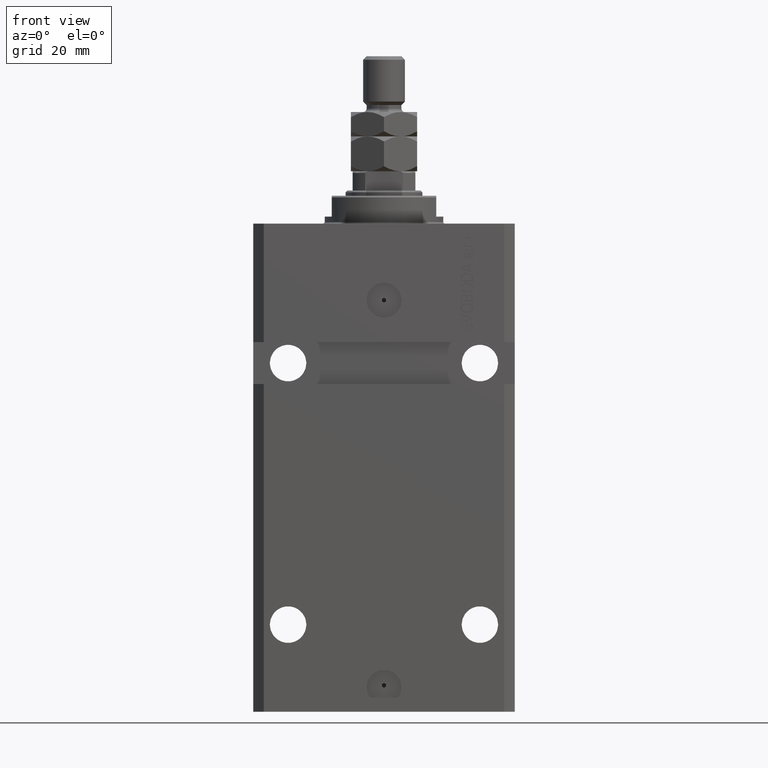
[diagram: clean part render]
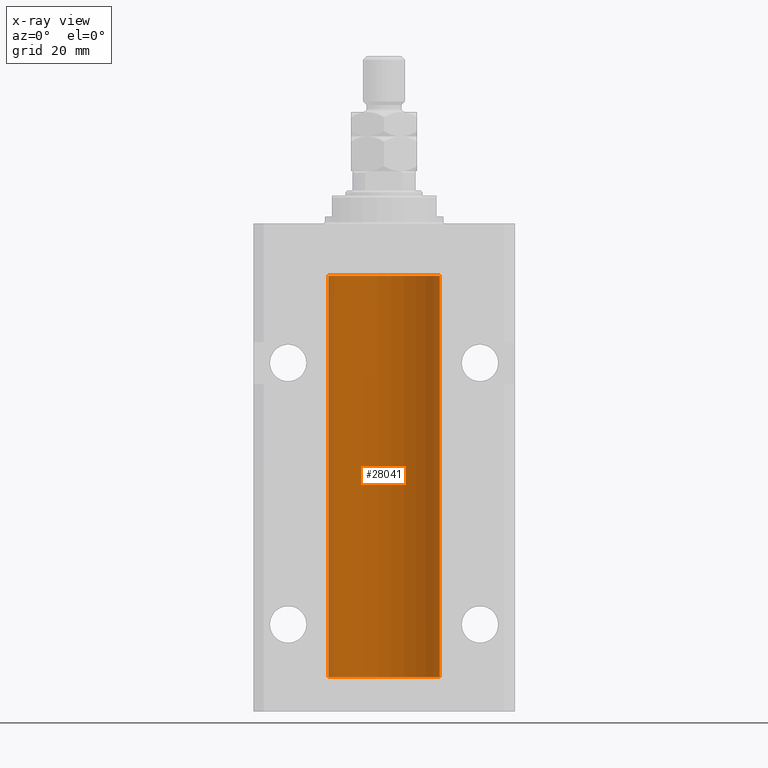
[diagram: x-ray — body ghosted, one internal face saturated and labeled with its STEP entity id]
A machine part, front view, then the same camera in x-ray: the body is ghosted and one INTERNAL B-rep face — a face not visible from any outside direction — is saturated and labeled: STEP entity #28041.
In plain terms, the highlighted cylindrical surface (partial cylindrical patch) has radius 16 mm, axis along (0, 0, 1).
Its self-contained STEP definition (entity closure, byte-faithful):
#241 = CARTESIAN_POINT ( 'NONE',  ( -16.00000000000000711, 0.08259886010189904093, -21.37500000000000000 ) ) ;
#928 = CARTESIAN_POINT ( 'NONE',  ( -15.99711699979842017, 0.3253759916140657737, -22.55856151623175521 ) ) ;
#1134 = AXIS2_PLACEMENT_3D ( 'NONE', #27383, #34880, #3125 ) ;
#1167 = CARTESIAN_POINT ( 'NONE',  ( -15.98779057735153941, 0.6249419637998100407, -21.83670145863507273 ) ) ;
#1276 = ORIENTED_EDGE ( 'NONE', *, *, #25081, .F. ) ;
#1731 = EDGE_CURVE ( 'NONE', #36406, #44662, #34573, .T. ) ;
#2275 = CARTESIAN_POINT ( 'NONE',  ( 16.00000000000000000, 0.000000000000000000, -130.0999999999999943 ) ) ;
#3125 = DIRECTION ( 'NONE',  ( 1.000000000000000000, 0.000000000000000000, 0.000000000000000000 ) ) ;
#3172 = CARTESIAN_POINT ( 'NONE',  ( 0.000000000000000000, 0.000000000000000000, -130.0999999999999943 ) ) ;
#3744 = CARTESIAN_POINT ( 'NONE',  ( -16.00000000000000000, 0.1631714642025800244, -22.62499999999985789 ) ) ;
#4399 = LINE ( 'NONE', #40129, #30821 ) ;
#5290 = EDGE_CURVE ( 'NONE', #44662, #29790, #14824, .T. ) ;
#6327 = ORIENTED_EDGE ( 'NONE', *, *, #35996, .F. ) ;
#6512 = CARTESIAN_POINT ( 'NONE',  ( -15.99070426498503217, 0.5462220647145575869, -128.3146006461414288 ) ) ;
#7284 = EDGE_CURVE ( 'NONE', #29833, #42352, #37778, .T. ) ;
#7487 = DIRECTION ( 'NONE',  ( -0.000000000000000000, -0.000000000000000000, 1.000000000000000000 ) ) ;
#7934 = CARTESIAN_POINT ( 'NONE',  ( -15.99707730059171240, 0.3150375992092407373, -21.45402333202571654 ) ) ;
#7941 = CYLINDRICAL_SURFACE ( 'NONE', #38777, 16.00000000000000000 ) ;
#8145 = EDGE_CURVE ( 'NONE', #33987, #16210, #45873, .T. ) ;
#8168 = CARTESIAN_POINT ( 'NONE',  ( 0.000000000000000000, 0.000000000000000000, -130.0999999999999943 ) ) ;
#9031 = EDGE_LOOP ( 'NONE', ( #10993, #18678, #40079, #17887, #1276, #43239, #6327, #23011 ) ) ;
#9766 = CARTESIAN_POINT ( 'NONE',  ( -16.00000000000000355, 0.08259886010188438599, -127.3749999999999574 ) ) ;
#9937 = DIRECTION ( 'NONE',  ( 0.000000000000000000, 0.000000000000000000, 1.000000000000000000 ) ) ;
#10230 = CARTESIAN_POINT ( 'NONE',  ( -15.98779057735154296, 0.6249419637998029353, -127.8367014586350763 ) ) ;
#10993 = ORIENTED_EDGE ( 'NONE', *, *, #5290, .F. ) ;
#11240 = CARTESIAN_POINT ( 'NONE',  ( -16.00000000000000000, 1.643679961284177128E-16, -21.37499999999999645 ) ) ;
#11415 = CARTESIAN_POINT ( 'NONE',  ( -16.00000000000013145, 3.685127038166941002E-13, -22.62500000000341771 ) ) ;
#11660 = DIRECTION ( 'NONE',  ( 1.000000000000000000, 0.000000000000000000, 0.000000000000000000 ) ) ;
#14512 = CARTESIAN_POINT ( 'NONE',  ( -16.00000000000013145, 3.685127464164956467E-13, -128.6250000000034390 ) ) ;
#14699 = CARTESIAN_POINT ( 'NONE',  ( -15.98778717651346071, 0.6250289588122140971, -22.08131585687052478 ) ) ;
#14824 = LINE ( 'NONE', #36323, #37546 ) ;
#14917 = CARTESIAN_POINT ( 'NONE',  ( -15.99934216141748244, 0.1636497843296417787, -21.39126528029306229 ) ) ;
#16210 = VERTEX_POINT ( 'NONE', #22124 ) ;
#16615 = CARTESIAN_POINT ( 'NONE',  ( 16.00000000000000000, 0.000000000000000000, -130.0999999999999943 ) ) ;
#17887 = ORIENTED_EDGE ( 'NONE', *, *, #8145, .T. ) ;
#18194 = CARTESIAN_POINT ( 'NONE',  ( -15.99070653155267685, 0.5573233280232986475, -21.67348148680506625 ) ) ;
#18678 = ORIENTED_EDGE ( 'NONE', *, *, #1731, .F. ) ;
#20483 = CARTESIAN_POINT ( 'NONE',  ( -15.99711699979841661, 0.3253759916140733233, -128.5585615162317765 ) ) ;
#21962 = DIRECTION ( 'NONE',  ( -0.000000000000000000, -0.000000000000000000, 1.000000000000000000 ) ) ;
#22124 = CARTESIAN_POINT ( 'NONE',  ( -16.00000000000000000, 1.959434878635765131E-15, -15.00000000000000000 ) ) ;
#22143 = CARTESIAN_POINT ( 'NONE',  ( -15.99548640841683067, 0.3843705577988847377, -21.50046628527008608 ) ) ;
#23011 = ORIENTED_EDGE ( 'NONE', *, *, #31346, .T. ) ;
#23988 = CARTESIAN_POINT ( 'NONE',  ( -15.99070653155267685, 0.5573233280232815501, -127.6734814868050449 ) ) ;
#24393 = DIRECTION ( 'NONE',  ( 1.000000000000000000, 0.000000000000000000, 0.000000000000000000 ) ) ;
#24448 = CARTESIAN_POINT ( 'NONE',  ( -15.99228023727723702, 0.5003781296993445871, -128.3834782955424032 ) ) ;
#24670 = CARTESIAN_POINT ( 'NONE',  ( -15.98778717651346604, 0.6250289588122058815, -128.0813158568705603 ) ) ;
#24971 = CARTESIAN_POINT ( 'NONE',  ( -15.99070426498503217, 0.5462220647145618058, -22.31460064614143590 ) ) ;
#25003 = CARTESIAN_POINT ( 'NONE',  ( -16.00000000000013145, 3.685127038166941002E-13, -22.62500000000341771 ) ) ;
#25081 = EDGE_CURVE ( 'NONE', #29833, #16210, #39511, .T. ) ;
#25387 = CARTESIAN_POINT ( 'NONE',  ( -16.00000000000000000, -1.314639473218082033E-14, -127.3749999999999858 ) ) ;
#25434 = FACE_OUTER_BOUND ( 'NONE', #9031, .T. ) ;
#26977 = LINE ( 'NONE', #2275, #35909 ) ;
#27383 = CARTESIAN_POINT ( 'NONE',  ( 0.000000000000000000, 0.000000000000000000, -15.00000000000000000 ) ) ;
#27578 = VECTOR ( 'NONE', #21962, 1000.000000000000000 ) ;
#28041 = ADVANCED_FACE ( 'NONE', ( #25434 ), #7941, .F. ) ;
#28179 = CARTESIAN_POINT ( 'NONE',  ( -16.00000000000013145, 3.685127464164956467E-13, -128.6250000000034390 ) ) ;
#28936 = CARTESIAN_POINT ( 'NONE',  ( -15.99228023727724413, 0.5003781296993413674, -22.38347829554236057 ) ) ;
#28982 = CARTESIAN_POINT ( 'NONE',  ( -16.00000000000000000, 1.959434878635765131E-15, -130.0999999999999943 ) ) ;
#29790 = VERTEX_POINT ( 'NONE', #14512 ) ;
#29833 = VERTEX_POINT ( 'NONE', #11240 ) ;
#30821 = VECTOR ( 'NONE', #36613, 1000.000000000000000 ) ;
#31247 = CARTESIAN_POINT ( 'NONE',  ( -16.00000000000000000, -1.314639473218082033E-14, -127.3749999999999858 ) ) ;
#31346 = EDGE_CURVE ( 'NONE', #38997, #29790, #33356, .T. ) ;
#31711 = CARTESIAN_POINT ( 'NONE',  ( -15.99934216141748244, 0.1636497843296232380, -127.3912652802930694 ) ) ;
#32128 = EDGE_CURVE ( 'NONE', #36406, #33987, #26977, .T. ) ;
#33356 = B_SPLINE_CURVE_WITH_KNOTS ( 'NONE', 3,
 ( #31247, #9766, #31711, #38948, #45279, #23988, #10230, #24670, #41997, #6512, #24448, #20483, #45499, #28179 ),
 .UNSPECIFIED., .F., .F.,
 ( 4, 2, 2, 2, 2, 2, 4 ),
 ( 2.457764170500729066E-18, 0.0002442776652680811759, 0.0004885553305361599666, 0.0009771106610723173311, 0.001221388326340437647, 0.001465665991608557962, 0.001954221322144799027 ),
 .UNSPECIFIED. ) ;
#33987 = VERTEX_POINT ( 'NONE', #36616 ) ;
#34573 = CIRCLE ( 'NONE', #39047, 16.00000000000000000 ) ;
#34880 = DIRECTION ( 'NONE',  ( 0.000000000000000000, 0.000000000000000000, 1.000000000000000000 ) ) ;
#35867 = DIRECTION ( 'NONE',  ( -0.000000000000000000, -0.000000000000000000, 1.000000000000000000 ) ) ;
#35909 = VECTOR ( 'NONE', #44541, 1000.000000000000000 ) ;
#35996 = EDGE_CURVE ( 'NONE', #38997, #42352, #4399, .T. ) ;
#36323 = CARTESIAN_POINT ( 'NONE',  ( -16.00000000000000000, 1.959434878635765131E-15, -130.0999999999999943 ) ) ;
#36406 = VERTEX_POINT ( 'NONE', #16615 ) ;
#36613 = DIRECTION ( 'NONE',  ( -0.000000000000000000, -0.000000000000000000, 1.000000000000000000 ) ) ;
#36616 = CARTESIAN_POINT ( 'NONE',  ( 16.00000000000000000, 0.000000000000000000, -15.00000000000000000 ) ) ;
#37546 = VECTOR ( 'NONE', #35867, 1000.000000000000000 ) ;
#37778 = B_SPLINE_CURVE_WITH_KNOTS ( 'NONE', 3,
 ( #42743, #241, #14917, #7934, #22143, #18194, #1167, #14699, #43421, #24971, #28936, #928, #3744, #11415 ),
 .UNSPECIFIED., .F., .F.,
 ( 4, 2, 2, 2, 2, 2, 4 ),
 ( 1.597328219370744179E-19, 0.0002442776652680942405, 0.0004885553305361882643, 0.0009771106610723839011, 0.001221388326340481665, 0.001465665991608579430, 0.001954221322144767369 ),
 .UNSPECIFIED. ) ;
#38777 = AXIS2_PLACEMENT_3D ( 'NONE', #8168, #7487, #11660 ) ;
#38948 = CARTESIAN_POINT ( 'NONE',  ( -15.99707730059171240, 0.3150375992092247501, -127.4540233320256561 ) ) ;
#38997 = VERTEX_POINT ( 'NONE', #25387 ) ;
#39047 = AXIS2_PLACEMENT_3D ( 'NONE', #3172, #9937, #24393 ) ;
#39511 = LINE ( 'NONE', #28982, #27578 ) ;
#40079 = ORIENTED_EDGE ( 'NONE', *, *, #32128, .T. ) ;
#40129 = CARTESIAN_POINT ( 'NONE',  ( -16.00000000000000000, 1.959434878635765131E-15, -130.0999999999999943 ) ) ;
#41645 = CARTESIAN_POINT ( 'NONE',  ( -16.00000000000000000, 1.959434878635765131E-15, -130.0999999999999943 ) ) ;
#41997 = CARTESIAN_POINT ( 'NONE',  ( -15.98844267028591482, 0.6088369347963276113, -128.1632473502432674 ) ) ;
#42352 = VERTEX_POINT ( 'NONE', #25003 ) ;
#42743 = CARTESIAN_POINT ( 'NONE',  ( -16.00000000000000000, 1.643679961284177128E-16, -21.37499999999999645 ) ) ;
#43239 = ORIENTED_EDGE ( 'NONE', *, *, #7284, .T. ) ;
#43421 = CARTESIAN_POINT ( 'NONE',  ( -15.98844267028591482, 0.6088369347963316081, -22.16324735024328518 ) ) ;
#44541 = DIRECTION ( 'NONE',  ( -0.000000000000000000, -0.000000000000000000, 1.000000000000000000 ) ) ;
#44662 = VERTEX_POINT ( 'NONE', #41645 ) ;
#45279 = CARTESIAN_POINT ( 'NONE',  ( -15.99548640841682712, 0.3843705577988635880, -127.5004662852700932 ) ) ;
#45499 = CARTESIAN_POINT ( 'NONE',  ( -15.99999999999999289, 0.1631714642025817730, -128.6249999999999147 ) ) ;
#45873 = CIRCLE ( 'NONE', #1134, 16.00000000000000000 ) ;